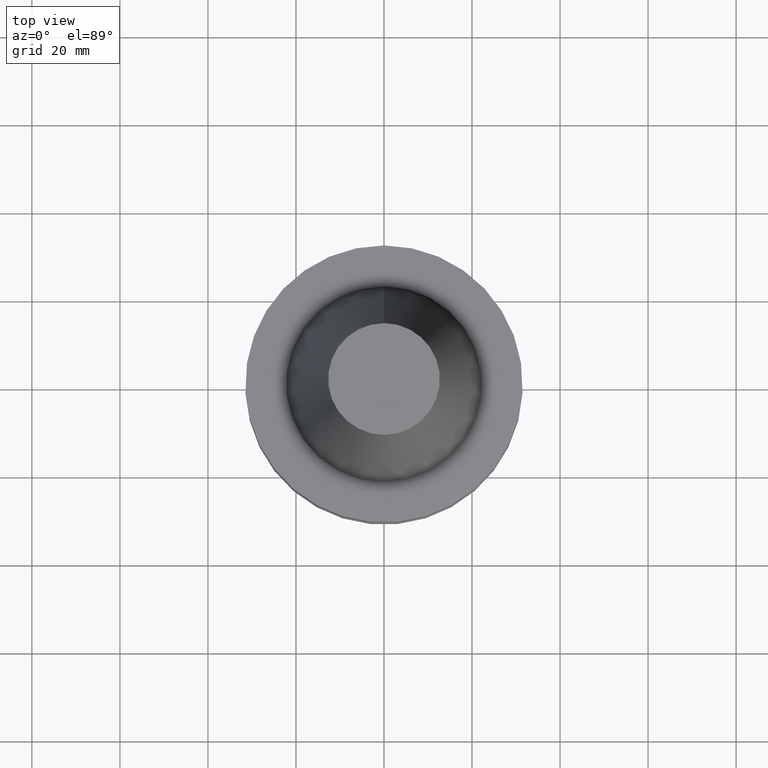
[diagram: clean part render]
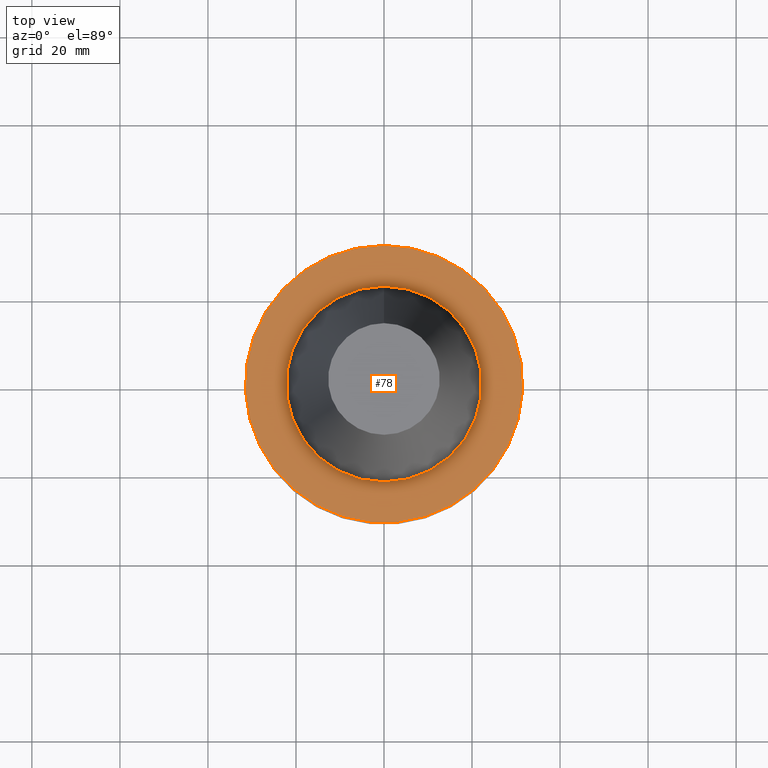
[diagram: same view with one face highlighted and labeled with its STEP entity id]
A machine part, top view. The second image highlights one B-rep face of the part: STEP entity #78.
In plain terms, the highlighted planar face has unit normal (-0, 0, 1).
Its self-contained STEP definition (entity closure, byte-faithful):
#78=ADVANCED_FACE('',(#102,#103),#104,.T.);
#102=FACE_OUTER_BOUND('',#154,.T.);
#103=FACE_BOUND('',#155,.T.);
#104=PLANE('',#156);
#154=EDGE_LOOP('',(#212));
#155=EDGE_LOOP('',(#213));
#156=AXIS2_PLACEMENT_3D('',#214,#215,#216);
#212=ORIENTED_EDGE('',*,*,#289,.F.);
#213=ORIENTED_EDGE('',*,*,#288,.T.);
#214=CARTESIAN_POINT('',(6.12323399576472E-017,26.8625315805736,-1.00000000000457));
#215=DIRECTION('',(-6.12323399573677E-017,1.3619350193058E-013,1.0));
#216=DIRECTION('',(-8.33461965746691E-030,-1.0,1.3619350193058E-013));
#288=EDGE_CURVE('',#307,#307,#308,.T.);
#289=EDGE_CURVE('',#309,#309,#310,.T.);
#307=VERTEX_POINT('',#341);
#308=CIRCLE('',#342,22.2250631611339);
#309=VERTEX_POINT('',#343);
#310=CIRCLE('',#344,31.5000000000133);
#341=CARTESIAN_POINT('',(6.12323399576086E-017,22.2250631611339,-1.00000000000394));
#342=AXIS2_PLACEMENT_3D('',#377,#378,#379);
#343=CARTESIAN_POINT('',(6.12323399576859E-017,31.5000000000133,-1.0000000000052));
#344=AXIS2_PLACEMENT_3D('',#380,#381,#382);
#377=CARTESIAN_POINT('',(6.12323399576087E-017,1.22464679915217E-016,-1.00000000000394));
#378=DIRECTION('',(6.12323399573677E-017,1.22464679914735E-016,-1.0));
#379=DIRECTION('',(-1.23259516440783E-032,1.0,1.22464679914735E-016));
#380=CARTESIAN_POINT('',(6.12323399576861E-017,1.22464679915372E-016,-1.0000000000052));
#381=DIRECTION('',(6.12323399573677E-017,1.22464679914735E-016,-1.0));
#382=DIRECTION('',(-1.23259516440783E-032,1.0,1.22464679914735E-016));